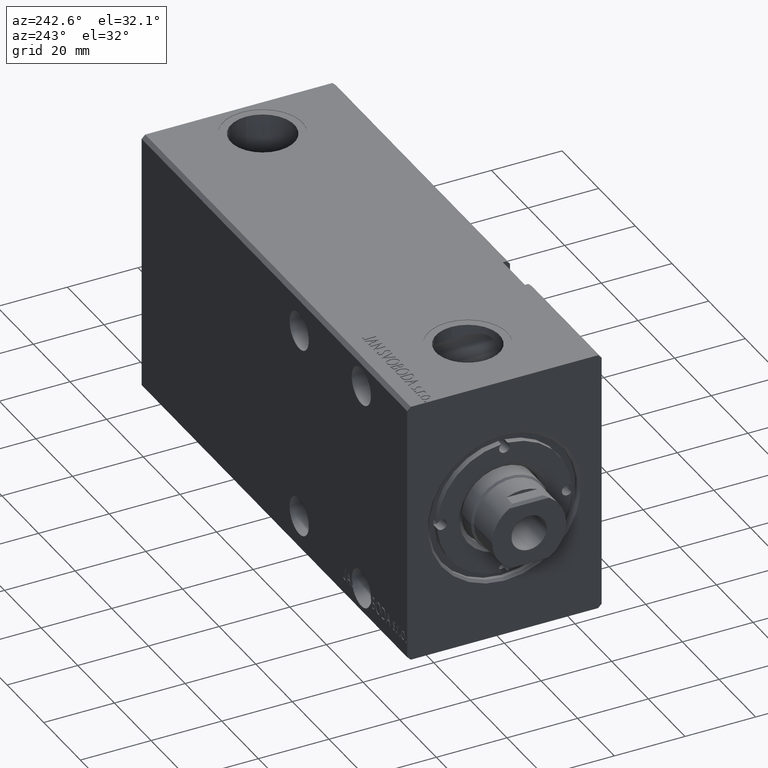
[diagram: clean part render]
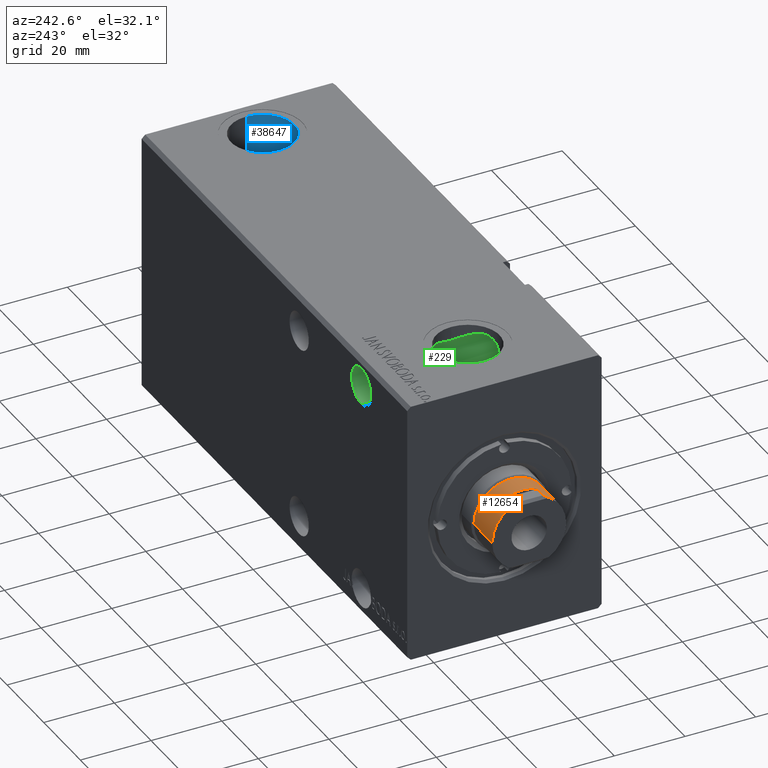
[diagram: same view with three faces highlighted in distinct colors, each labeled with its STEP entity id]
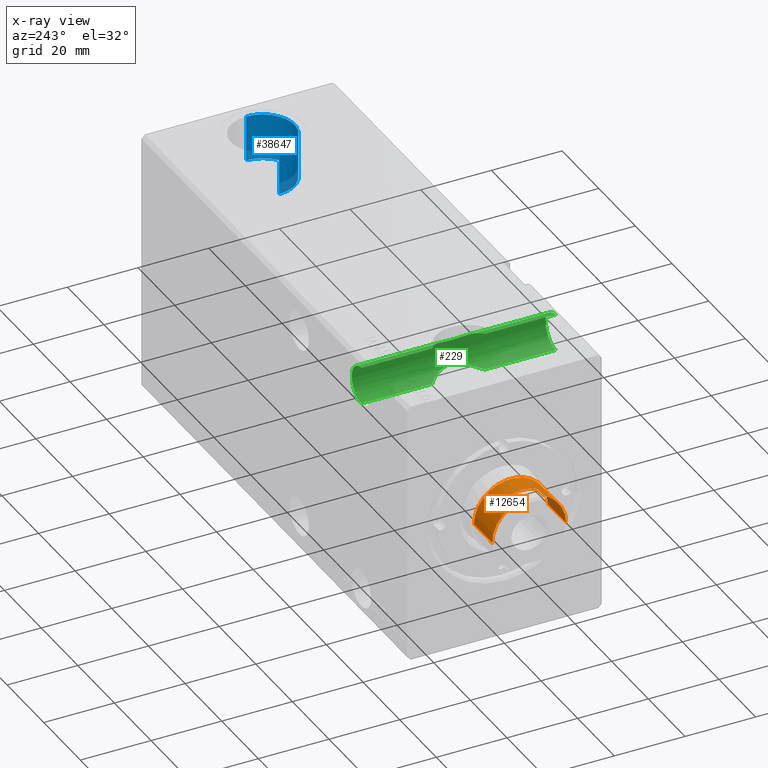
[diagram: x-ray of the same camera — body ghosted, the three highlighted faces saturated]
A machine part, auxiliary view with three faces highlighted in distinct colors.
The next image is the same camera in x-ray (body ghosted, the three faces saturated) — at least one of them is partly hidden behind the body in this view.
Their STEP definitions:

[orange] entity #12654 — the highlighted cylindrical surface (partial cylindrical patch) has radius 10.46 mm, axis along (-1, -0, -0).
#79 = ORIENTED_EDGE ( 'NONE', *, *, #35809, .T. ) ;
#102 = EDGE_CURVE ( 'NONE', #16804, #29643, #17333, .T. ) ;
#1681 = DIRECTION ( 'NONE',  ( -0.000000000000000000, -1.827169771437783368E-16, 1.000000000000000000 ) ) ;
#2246 = ORIENTED_EDGE ( 'NONE', *, *, #4277, .T. ) ;
#2770 = DIRECTION ( 'NONE',  ( -0.000000000000000000, -1.827169771437783368E-16, 1.000000000000000000 ) ) ;
#3604 = CIRCLE ( 'NONE', #20531, 10.46000000000000085 ) ;
#3626 = CARTESIAN_POINT ( 'NONE',  ( 9.500000000000000000, -4.377396486497444172, 124.5000000000000000 ) ) ;
#3935 = CIRCLE ( 'NONE', #20780, 10.46000000000000085 ) ;
#3940 = CARTESIAN_POINT ( 'NONE',  ( 0.000000000000000000, -2.347913156297551696E-14, 128.5000000000000000 ) ) ;
#4277 = EDGE_CURVE ( 'NONE', #36056, #7547, #28980, .T. ) ;
#4292 = CARTESIAN_POINT ( 'NONE',  ( 1.314046015485110656E-15, -10.46000000000002039, 118.5000000000000000 ) ) ;
#4886 = EDGE_CURVE ( 'NONE', #12284, #34118, #7211, .T. ) ;
#5426 = DIRECTION ( 'NONE',  ( 0.000000000000000000, -1.000000000000000000, 0.000000000000000000 ) ) ;
#5998 = VERTEX_POINT ( 'NONE', #26548 ) ;
#6547 = CARTESIAN_POINT ( 'NONE',  ( 9.500000000000000000, 4.377396486497398875, 124.5000000000000000 ) ) ;
#6832 = CARTESIAN_POINT ( 'NONE',  ( 9.500000000000000000, -4.377396486497445061, 127.7900000000000205 ) ) ;
#6873 = CARTESIAN_POINT ( 'NONE',  ( 8.790000000000038227, 5.669876541865709996, 128.5000000000000000 ) ) ;
#7044 = CARTESIAN_POINT ( 'NONE',  ( 0.000000000000000000, 10.45999999999997776, 118.5000000000000000 ) ) ;
#7211 =( BOUNDED_CURVE ( )  B_SPLINE_CURVE ( 3, ( #6873, #19305, #7277, #13394 ),
 .UNSPECIFIED., .F., .F. ) 
 B_SPLINE_CURVE_WITH_KNOTS ( ( 4, 4 ),
 ( 2.568714171481425890, 2.709811500076702462 ),
 .UNSPECIFIED. ) 
 CURVE ( )  GEOMETRIC_REPRESENTATION_ITEM ( )  RATIONAL_B_SPLINE_CURVE ( ( 1.000000000000000000, 0.9983416499762386431, 0.9983416499762386431, 1.000000000000000000 ) ) 
 REPRESENTATION_ITEM ( '' )  );
#7277 = CARTESIAN_POINT ( 'NONE',  ( 9.293949384395547852, 4.824575729748585395, 127.9960506156044886 ) ) ;
#7547 = VERTEX_POINT ( 'NONE', #7044 ) ;
#8273 = VERTEX_POINT ( 'NONE', #14280 ) ;
#8470 = DIRECTION ( 'NONE',  ( 0.000000000000000000, -1.000000000000000000, 0.000000000000000000 ) ) ;
#9353 = FACE_OUTER_BOUND ( 'NONE', #37154, .T. ) ;
#9553 = CARTESIAN_POINT ( 'NONE',  ( 0.000000000000000000, -2.347913156297551696E-14, 128.5000000000000000 ) ) ;
#10256 = ORIENTED_EDGE ( 'NONE', *, *, #24353, .T. ) ;
#11496 = EDGE_CURVE ( 'NONE', #36056, #5998, #21015, .T. ) ;
#11577 = CARTESIAN_POINT ( 'NONE',  ( 1.280980551908131330E-15, 10.45999999999997421, 128.5000000000000000 ) ) ;
#11584 = ORIENTED_EDGE ( 'NONE', *, *, #19697, .T. ) ;
#12284 = VERTEX_POINT ( 'NONE', #19481 ) ;
#12654 = ADVANCED_FACE ( 'NONE', ( #9353 ), #12822, .T. ) ;
#12780 = ORIENTED_EDGE ( 'NONE', *, *, #11496, .F. ) ;
#12822 = CYLINDRICAL_SURFACE ( 'NONE', #14556, 10.45999999999999908 ) ;
#13394 = CARTESIAN_POINT ( 'NONE',  ( 9.500000000000000000, 4.377396486497397987, 127.7900000000000205 ) ) ;
#14107 = CARTESIAN_POINT ( 'NONE',  ( 0.000000000000000000, -2.274826365440040450E-14, 124.5000000000000000 ) ) ;
#14280 = CARTESIAN_POINT ( 'NONE',  ( 1.280980551908131330E-15, 10.45999999999997598, 128.5000000000000000 ) ) ;
#14556 = AXIS2_PLACEMENT_3D ( 'NONE', #9553, #27673, #18926 ) ;
#14904 = DIRECTION ( 'NONE',  ( -1.000000000000000000, 0.000000000000000000, 0.000000000000000000 ) ) ;
#15541 = EDGE_CURVE ( 'NONE', #7547, #8273, #18288, .T. ) ;
#15860 = ORIENTED_EDGE ( 'NONE', *, *, #4886, .T. ) ;
#16400 = CARTESIAN_POINT ( 'NONE',  ( 8.790000000000038227, -5.669876541865757069, 128.5000000000000000 ) ) ;
#16804 = VERTEX_POINT ( 'NONE', #18441 ) ;
#16869 = CARTESIAN_POINT ( 'NONE',  ( 9.500000000000000000, 4.377396486497397987, 128.5000000000000000 ) ) ;
#17156 = DIRECTION ( 'NONE',  ( -0.000000000000000000, -1.827169771437783368E-16, 1.000000000000000000 ) ) ;
#17333 =( BOUNDED_CURVE ( )  B_SPLINE_CURVE ( 3, ( #6832, #25567, #37976, #16400 ),
 .UNSPECIFIED., .F., .T. ) 
 B_SPLINE_CURVE_WITH_KNOTS ( ( 4, 4 ),
 ( 3.573373807102883770, 3.714471135698160342 ),
 .UNSPECIFIED. ) 
 CURVE ( )  GEOMETRIC_REPRESENTATION_ITEM ( )  RATIONAL_B_SPLINE_CURVE ( ( 1.000000000000000000, 0.9983416499762386431, 0.9983416499762386431, 1.000000000000000000 ) ) 
 REPRESENTATION_ITEM ( '' )  );
#17665 = DIRECTION ( 'NONE',  ( 0.000000000000000000, 1.827169771437783368E-16, -1.000000000000000000 ) ) ;
#17676 = ORIENTED_EDGE ( 'NONE', *, *, #15541, .T. ) ;
#17918 = AXIS2_PLACEMENT_3D ( 'NONE', #36346, #18440, #8470 ) ;
#18288 = LINE ( 'NONE', #11577, #23619 ) ;
#18440 = DIRECTION ( 'NONE',  ( -0.000000000000000000, -1.827169771437783368E-16, 1.000000000000000000 ) ) ;
#18441 = CARTESIAN_POINT ( 'NONE',  ( 9.500000000000000000, -4.377396486497445061, 127.7900000000000205 ) ) ;
#18625 = ORIENTED_EDGE ( 'NONE', *, *, #24882, .F. ) ;
#18926 = DIRECTION ( 'NONE',  ( 0.000000000000000000, -1.000000000000000000, 0.000000000000000000 ) ) ;
#19305 = CARTESIAN_POINT ( 'NONE',  ( 9.056889589612579172, 5.256118063110141847, 128.2331104103874679 ) ) ;
#19481 = CARTESIAN_POINT ( 'NONE',  ( 8.790000000000038227, 5.669876541865709996, 128.5000000000000000 ) ) ;
#19697 = EDGE_CURVE ( 'NONE', #35994, #38825, #39183, .T. ) ;
#20231 = LINE ( 'NONE', #32219, #25974 ) ;
#20531 = AXIS2_PLACEMENT_3D ( 'NONE', #3940, #34480, #34074 ) ;
#20780 = AXIS2_PLACEMENT_3D ( 'NONE', #30660, #2770, #5426 ) ;
#21014 = DIRECTION ( 'NONE',  ( -0.000000000000000000, -0.000000000000000000, -1.000000000000000000 ) ) ;
#21015 = LINE ( 'NONE', #32816, #27500 ) ;
#23553 = ORIENTED_EDGE ( 'NONE', *, *, #102, .T. ) ;
#23619 = VECTOR ( 'NONE', #39057, 1000.000000000000000 ) ;
#24353 = EDGE_CURVE ( 'NONE', #34118, #35994, #39043, .T. ) ;
#24398 = VECTOR ( 'NONE', #17665, 1000.000000000000000 ) ;
#24882 = EDGE_CURVE ( 'NONE', #12284, #8273, #3604, .T. ) ;
#25567 = CARTESIAN_POINT ( 'NONE',  ( 9.293949384395547852, -4.824575729748630692, 127.9960506156044886 ) ) ;
#25974 = VECTOR ( 'NONE', #17156, 1000.000000000000000 ) ;
#26548 = CARTESIAN_POINT ( 'NONE',  ( 0.000000000000000000, -10.46000000000002395, 128.5000000000000000 ) ) ;
#27500 = VECTOR ( 'NONE', #1681, 1000.000000000000000 ) ;
#27673 = DIRECTION ( 'NONE',  ( -0.000000000000000000, -1.827169771437783368E-16, 1.000000000000000000 ) ) ;
#28980 = CIRCLE ( 'NONE', #17918, 10.45999999999999908 ) ;
#29643 = VERTEX_POINT ( 'NONE', #35034 ) ;
#30660 = CARTESIAN_POINT ( 'NONE',  ( 0.000000000000000000, -2.347913156297551696E-14, 128.5000000000000000 ) ) ;
#30803 = ORIENTED_EDGE ( 'NONE', *, *, #39105, .F. ) ;
#32219 = CARTESIAN_POINT ( 'NONE',  ( 9.500000000000000000, -4.377396486497445061, 128.5000000000000000 ) ) ;
#32485 = CARTESIAN_POINT ( 'NONE',  ( 9.500000000000000000, 4.377396486497397987, 127.7900000000000205 ) ) ;
#32816 = CARTESIAN_POINT ( 'NONE',  ( 0.000000000000000000, -10.46000000000002395, 128.5000000000000000 ) ) ;
#34074 = DIRECTION ( 'NONE',  ( 0.000000000000000000, -1.000000000000000000, 0.000000000000000000 ) ) ;
#34118 = VERTEX_POINT ( 'NONE', #32485 ) ;
#34480 = DIRECTION ( 'NONE',  ( -0.000000000000000000, -1.827169771437783368E-16, 1.000000000000000000 ) ) ;
#35034 = CARTESIAN_POINT ( 'NONE',  ( 8.790000000000038227, -5.669876541865757069, 128.5000000000000000 ) ) ;
#35809 = EDGE_CURVE ( 'NONE', #38825, #16804, #20231, .T. ) ;
#35994 = VERTEX_POINT ( 'NONE', #6547 ) ;
#36056 = VERTEX_POINT ( 'NONE', #4292 ) ;
#36346 = CARTESIAN_POINT ( 'NONE',  ( 0.000000000000000000, -2.165196179153773265E-14, 118.5000000000000000 ) ) ;
#37154 = EDGE_LOOP ( 'NONE', ( #2246, #17676, #18625, #15860, #10256, #11584, #79, #23553, #30803, #12780 ) ) ;
#37875 = AXIS2_PLACEMENT_3D ( 'NONE', #14107, #21014, #14904 ) ;
#37976 = CARTESIAN_POINT ( 'NONE',  ( 9.056889589612579172, -5.256118063110187144, 128.2331104103874679 ) ) ;
#38825 = VERTEX_POINT ( 'NONE', #3626 ) ;
#39043 = LINE ( 'NONE', #16869, #24398 ) ;
#39057 = DIRECTION ( 'NONE',  ( -0.000000000000000000, -1.827169771437783368E-16, 1.000000000000000000 ) ) ;
#39105 = EDGE_CURVE ( 'NONE', #5998, #29643, #3935, .T. ) ;
#39183 = CIRCLE ( 'NONE', #37875, 10.45999999999999908 ) ;

[blue] entity #38647 — the highlighted cylindrical surface (edge-blend (fillet) strip) has radius 9 mm, axis along (0, 0, 1).
#3407 = CARTESIAN_POINT ( 'NONE',  ( 123.0000000000000000, 7.721156999316769510E-16, 24.40000000000000568 ) ) ;
#3583 = CARTESIAN_POINT ( 'NONE',  ( 141.0000000000000000, -3.300664193009419462E-16, 37.40000000000000568 ) ) ;
#4413 = DIRECTION ( 'NONE',  ( 1.000000000000000000, 0.000000000000000000, 0.000000000000000000 ) ) ;
#4417 = ORIENTED_EDGE ( 'NONE', *, *, #8828, .T. ) ;
#5023 = CARTESIAN_POINT ( 'NONE',  ( 132.0000000000000000, -3.300664193009419462E-16, 24.40000000000000568 ) ) ;
#5664 = EDGE_CURVE ( 'NONE', #6130, #10657, #15362, .T. ) ;
#6130 = VERTEX_POINT ( 'NONE', #24290 ) ;
#7746 = AXIS2_PLACEMENT_3D ( 'NONE', #23409, #7928, #14047 ) ;
#7928 = DIRECTION ( 'NONE',  ( -0.000000000000000000, -0.000000000000000000, 1.000000000000000000 ) ) ;
#8104 = AXIS2_PLACEMENT_3D ( 'NONE', #38050, #13830, #26243 ) ;
#8828 = EDGE_CURVE ( 'NONE', #6130, #37114, #31482, .T. ) ;
#9835 = CARTESIAN_POINT ( 'NONE',  ( 141.0000000000000000, -3.300664193009419462E-16, 24.40000000000000568 ) ) ;
#10657 = VERTEX_POINT ( 'NONE', #39920 ) ;
#11143 = CARTESIAN_POINT ( 'NONE',  ( 123.0000000000000000, 7.721156999316771482E-16, 37.40000000000000568 ) ) ;
#11218 = EDGE_CURVE ( 'NONE', #10657, #35551, #12503, .T. ) ;
#12503 = LINE ( 'NONE', #9835, #29765 ) ;
#12977 = DIRECTION ( 'NONE',  ( -0.000000000000000000, -0.000000000000000000, 1.000000000000000000 ) ) ;
#13830 = DIRECTION ( 'NONE',  ( 0.000000000000000000, 0.000000000000000000, 1.000000000000000000 ) ) ;
#14047 = DIRECTION ( 'NONE',  ( 1.000000000000000000, 0.000000000000000000, 0.000000000000000000 ) ) ;
#15362 = CIRCLE ( 'NONE', #25089, 9.000000000000007105 ) ;
#15489 = EDGE_CURVE ( 'NONE', #37114, #35551, #20461, .T. ) ;
#18177 = ORIENTED_EDGE ( 'NONE', *, *, #11218, .F. ) ;
#20461 = CIRCLE ( 'NONE', #8104, 9.000000000000007105 ) ;
#23241 = VECTOR ( 'NONE', #12977, 1000.000000000000000 ) ;
#23409 = CARTESIAN_POINT ( 'NONE',  ( 132.0000000000000000, -3.300664193009419462E-16, 24.40000000000000568 ) ) ;
#24290 = CARTESIAN_POINT ( 'NONE',  ( 123.0000000000000000, 7.721156999316771482E-16, 24.40000000000000568 ) ) ;
#25089 = AXIS2_PLACEMENT_3D ( 'NONE', #5023, #38214, #4413 ) ;
#25314 = DIRECTION ( 'NONE',  ( -0.000000000000000000, -0.000000000000000000, 1.000000000000000000 ) ) ;
#26243 = DIRECTION ( 'NONE',  ( 1.000000000000000000, 0.000000000000000000, 0.000000000000000000 ) ) ;
#26849 = CYLINDRICAL_SURFACE ( 'NONE', #7746, 9.000000000000007105 ) ;
#28392 = ORIENTED_EDGE ( 'NONE', *, *, #15489, .T. ) ;
#29765 = VECTOR ( 'NONE', #25314, 1000.000000000000000 ) ;
#29908 = FACE_OUTER_BOUND ( 'NONE', #35264, .T. ) ;
#31482 = LINE ( 'NONE', #3407, #23241 ) ;
#32245 = ORIENTED_EDGE ( 'NONE', *, *, #5664, .F. ) ;
#35264 = EDGE_LOOP ( 'NONE', ( #32245, #4417, #28392, #18177 ) ) ;
#35551 = VERTEX_POINT ( 'NONE', #3583 ) ;
#37114 = VERTEX_POINT ( 'NONE', #11143 ) ;
#38050 = CARTESIAN_POINT ( 'NONE',  ( 132.0000000000000000, -3.300664193009419462E-16, 37.40000000000000568 ) ) ;
#38214 = DIRECTION ( 'NONE',  ( 0.000000000000000000, 0.000000000000000000, 1.000000000000000000 ) ) ;
#38647 = ADVANCED_FACE ( 'NONE', ( #29908 ), #26849, .F. ) ;
#39920 = CARTESIAN_POINT ( 'NONE',  ( 141.0000000000000000, -3.300664193009419462E-16, 24.40000000000000568 ) ) ;

[green] entity #229 — the highlighted cylindrical surface (edge-blend (fillet) strip) has radius 5.25 mm, axis along (-0, -1, -0).
#229 = ADVANCED_FACE ( 'NONE', ( #17006 ), #39375, .F. ) ;
#502 = DIRECTION ( 'NONE',  ( -0.000000000000000000, 1.000000000000000000, 5.507058653894625853E-17 ) ) ;
#877 = CARTESIAN_POINT ( 'NONE',  ( 29.00000000000000355, 0.3752926721738933935, 33.50575526560491113 ) ) ;
#1099 = DIRECTION ( 'NONE',  ( 0.000000000000000000, 0.000000000000000000, 1.000000000000000000 ) ) ;
#1254 = EDGE_CURVE ( 'NONE', #36731, #25452, #27774, .T. ) ;
#1470 = CARTESIAN_POINT ( 'NONE',  ( 30.28846153846152944, 62.50000000000002842, 29.25189232688643060 ) ) ;
#1478 = CARTESIAN_POINT ( 'NONE',  ( 25.69352248287891172, 6.980096532906297391, 35.22304154373502882 ) ) ;
#1494 = CARTESIAN_POINT ( 'NONE',  ( 27.80044988867588174, -4.503335614300094214, 34.50180843151989762 ) ) ;
#1697 = DIRECTION ( 'NONE',  ( -0.000000000000000000, -1.000000000000000000, -5.507058653894626469E-17 ) ) ;
#2221 = CARTESIAN_POINT ( 'NONE',  ( 30.28846153846152944, 62.50000000000002842, 30.74810767311353388 ) ) ;
#2333 = CARTESIAN_POINT ( 'NONE',  ( 25.09203633362806229, 7.420994945222085803, 35.24999999999997868 ) ) ;
#2344 = AXIS2_PLACEMENT_3D ( 'NONE', #18793, #2910, #27741 ) ;
#2424 = DIRECTION ( 'NONE',  ( -0.000000000000000000, -1.000000000000000000, -5.507058653894626469E-17 ) ) ;
#2622 = EDGE_CURVE ( 'NONE', #21100, #29215, #25031, .T. ) ;
#2910 = DIRECTION ( 'NONE',  ( -0.000000000000000000, 1.000000000000000000, 5.507058653894625853E-17 ) ) ;
#2937 = CARTESIAN_POINT ( 'NONE',  ( 25.39913943000259167, -7.210271162703460135, 24.74999999999997868 ) ) ;
#3254 = CARTESIAN_POINT ( 'NONE',  ( 30.01923076923075584, -27.30000000000000426, 31.81252723945480909 ) ) ;
#4130 = CARTESIAN_POINT ( 'NONE',  ( 25.39828995337057549, 7.210854044905479654, 35.24999999999998579 ) ) ;
#4336 = CARTESIAN_POINT ( 'NONE',  ( 28.88545983803484418, 1.477775345565450982, 33.62999741624012984 ) ) ;
#4351 = CARTESIAN_POINT ( 'NONE',  ( 25.69255912983133783, -6.980890451850883416, 35.22315996862726450 ) ) ;
#4368 = VERTEX_POINT ( 'NONE', #7020 ) ;
#4537 = CARTESIAN_POINT ( 'NONE',  ( 27.61597516942679320, 4.809012894324030896, 34.60913116232580933 ) ) ;
#4755 = CARTESIAN_POINT ( 'NONE',  ( 25.39985986452861866, -7.209776824840458787, 35.24999999999997868 ) ) ;
#4826 = CARTESIAN_POINT ( 'NONE',  ( 28.13248985305452976, 3.871582426429905688, 25.71546369612806160 ) ) ;
#4865 = B_SPLINE_CURVE_WITH_KNOTS ( 'NONE', 3,
 ( #29380, #4755, #4351, #17171, #35484, #8004, #28978, #13525, #1494, #26532, #25936, #13921, #10457, #7401, #13725, #23286 ),
 .UNSPECIFIED., .F., .F.,
 ( 4, 2, 2, 2, 2, 2, 2, 4 ),
 ( 0.02576235852698001427, 0.02686758018306225140, 0.02797280183914449200, 0.02907802349522672913, 0.03018324515130896973, 0.03239368846347343706, 0.03349891011955567072, 0.03460413177563790438 ),
 .UNSPECIFIED. ) ;
#5027 = EDGE_CURVE ( 'NONE', #14478, #25319, #18480, .T. ) ;
#5468 = VERTEX_POINT ( 'NONE', #13639 ) ;
#5996 = CARTESIAN_POINT ( 'NONE',  ( 29.00000000000000355, -0.7547348622432300536, 26.49424473439504624 ) ) ;
#6009 = VECTOR ( 'NONE', #2424, 1000.000000000000000 ) ;
#6187 = CARTESIAN_POINT ( 'NONE',  ( 26.50772424525515092, -6.227478193131618767, 24.93813414828927222 ) ) ;
#6375 = CIRCLE ( 'NONE', #20046, 5.249999999999997335 ) ;
#6904 = CIRCLE ( 'NONE', #2344, 5.249999999999997335 ) ;
#6952 = B_SPLINE_CURVE_WITH_KNOTS ( 'NONE', 3,
 ( #16354, #877, #10242, #4336, #20025, #19820, #35073, #32019, #4537, #38333, #29363, #16760, #10638, #1478, #4130, #28964 ),
 .UNSPECIFIED., .F., .F.,
 ( 4, 2, 2, 2, 2, 2, 2, 4 ),
 ( 0.03460413177563790438, 0.03570973411017101112, 0.03681533644470411093, 0.03902654111377031054, 0.04013214344830341729, 0.04123774578283651709, 0.04234334811736962384, 0.04344895045190272365 ),
 .UNSPECIFIED. ) ;
#7020 = CARTESIAN_POINT ( 'NONE',  ( 25.09203633362805519, 27.50000000000001066, 24.74999999999997868 ) ) ;
#7401 = CARTESIAN_POINT ( 'NONE',  ( 28.97665713912697072, -0.7447784191796217312, 33.53222785005503681 ) ) ;
#7625 = CARTESIAN_POINT ( 'NONE',  ( 25.09203633362805519, -27.50000000000000355, 29.99999999999997868 ) ) ;
#7673 = CARTESIAN_POINT ( 'NONE',  ( 26.98708261470107672, 5.684326911343642763, 25.09745503042153558 ) ) ;
#7750 = ORIENTED_EDGE ( 'NONE', *, *, #1254, .F. ) ;
#7877 = CARTESIAN_POINT ( 'NONE',  ( 28.64300191448425181, 2.535850762051376606, 26.13113724437028296 ) ) ;
#8004 = CARTESIAN_POINT ( 'NONE',  ( 26.98775188104276523, -5.683516051408362024, 34.90229200153667932 ) ) ;
#8072 = CARTESIAN_POINT ( 'NONE',  ( 30.28846153846152944, -27.50000000000000355, 30.74810767311353032 ) ) ;
#8379 = CARTESIAN_POINT ( 'NONE',  ( 25.09203633362805519, -27.30000000000000426, 29.99999999999997868 ) ) ;
#8442 = VECTOR ( 'NONE', #23559, 1000.000000000000000 ) ;
#8444 = CARTESIAN_POINT ( 'NONE',  ( 28.64344796629017154, -2.534200944029155966, 26.13155745703043920 ) ) ;
#8639 = CARTESIAN_POINT ( 'NONE',  ( 26.98845012761672635, -5.682739155726322267, 25.09793177466777436 ) ) ;
#8775 = VERTEX_POINT ( 'NONE', #28425 ) ;
#9369 = VERTEX_POINT ( 'NONE', #35043 ) ;
#9749 = EDGE_CURVE ( 'NONE', #24063, #33259, #17435, .T. ) ;
#10191 = VECTOR ( 'NONE', #13703, 1000.000000000000000 ) ;
#10242 = CARTESIAN_POINT ( 'NONE',  ( 28.97639889706040250, 0.7479835199682542957, 33.53251618559648506 ) ) ;
#10434 = LINE ( 'NONE', #1470, #10191 ) ;
#10457 = CARTESIAN_POINT ( 'NONE',  ( 28.88604462900767089, -1.474204578204435734, 33.62938196416556025 ) ) ;
#10528 = EDGE_CURVE ( 'NONE', #15682, #25452, #6375, .T. ) ;
#10638 = CARTESIAN_POINT ( 'NONE',  ( 26.24929060386796209, 6.487242312427180302, 35.12861688073245148 ) ) ;
#10726 = CARTESIAN_POINT ( 'NONE',  ( 26.50826010511298136, 6.226832766654192497, 24.93833448208705761 ) ) ;
#10934 = CARTESIAN_POINT ( 'NONE',  ( 27.20811824714590443, 5.401112278612569817, 25.18998215254051587 ) ) ;
#11008 = CIRCLE ( 'NONE', #25969, 5.249999999999997335 ) ;
#11087 = EDGE_CURVE ( 'NONE', #9369, #28857, #17655, .T. ) ;
#11225 = B_SPLINE_CURVE_WITH_KNOTS ( 'NONE', 3,
 ( #36721, #5996, #34068, #8444, #20872, #30626, #17811, #24526, #24311, #27166, #8639, #6187, #18415, #23922, #2937, #36322 ),
 .UNSPECIFIED., .F., .F.,
 ( 4, 2, 2, 2, 2, 2, 2, 4 ),
 ( 1.438171675672391429E-18, 0.002215372555607655978, 0.003323058833411481582, 0.004430745111215307619, 0.005538431389019131922, 0.006646117666822956224, 0.007753803944626780527, 0.008861490222430604830 ),
 .UNSPECIFIED. ) ;
#11322 = EDGE_CURVE ( 'NONE', #8775, #33259, #6952, .T. ) ;
#11934 = CARTESIAN_POINT ( 'NONE',  ( 25.09203633362805519, 62.50000000000002842, 24.74999999999998224 ) ) ;
#13046 = ORIENTED_EDGE ( 'NONE', *, *, #31205, .F. ) ;
#13525 = CARTESIAN_POINT ( 'NONE',  ( 27.61425571795738776, -4.811558733873751770, 34.60999959154606387 ) ) ;
#13598 = CARTESIAN_POINT ( 'NONE',  ( 25.69334361712194692, 6.980293622299830858, 24.77689924301810365 ) ) ;
#13639 = CARTESIAN_POINT ( 'NONE',  ( 25.09203633362804808, -7.420994945222091133, 24.74999999999997868 ) ) ;
#13703 = DIRECTION ( 'NONE',  ( 0.000000000000000000, 1.000000000000000000, 5.507058653894626469E-17 ) ) ;
#13725 = CARTESIAN_POINT ( 'NONE',  ( 29.00000000000000000, -0.3751634522648794046, 33.50575526560491113 ) ) ;
#13921 = CARTESIAN_POINT ( 'NONE',  ( 28.81830316114043811, -1.835833140632391336, 33.70034376692515821 ) ) ;
#13999 = LINE ( 'NONE', #14597, #8442 ) ;
#14197 = CARTESIAN_POINT ( 'NONE',  ( 27.80154670682738072, 4.501378752767488223, 25.49887097713087414 ) ) ;
#14384 = CARTESIAN_POINT ( 'NONE',  ( 25.09203633362805519, 62.50000000000002842, 35.24999999999998579 ) ) ;
#14478 = VERTEX_POINT ( 'NONE', #35272 ) ;
#14597 = CARTESIAN_POINT ( 'NONE',  ( 25.09203633362805519, 62.50000000000002842, 24.74999999999998224 ) ) ;
#14698 = DIRECTION ( 'NONE',  ( 0.000000000000000000, 0.000000000000000000, 1.000000000000000000 ) ) ;
#14755 = DIRECTION ( 'NONE',  ( -0.000000000000000000, -1.000000000000000000, -5.507058653894626469E-17 ) ) ;
#15067 = CARTESIAN_POINT ( 'NONE',  ( 29.00000000000000000, 3.587151987064342847E-15, 26.49424473439504268 ) ) ;
#15682 = VERTEX_POINT ( 'NONE', #34748 ) ;
#16332 = VERTEX_POINT ( 'NONE', #39663 ) ;
#16354 = CARTESIAN_POINT ( 'NONE',  ( 29.00000000000000000, 2.448765741311619827E-15, 33.50575526560491113 ) ) ;
#16737 = VERTEX_POINT ( 'NONE', #34698 ) ;
#16760 = CARTESIAN_POINT ( 'NONE',  ( 26.50687051437111563, 6.228290665738291487, 35.06205956538869373 ) ) ;
#16808 = ORIENTED_EDGE ( 'NONE', *, *, #10528, .T. ) ;
#17006 = FACE_OUTER_BOUND ( 'NONE', #23745, .T. ) ;
#17171 = CARTESIAN_POINT ( 'NONE',  ( 26.24861887141146610, -6.487898207216983515, 35.12877612300681562 ) ) ;
#17247 = CARTESIAN_POINT ( 'NONE',  ( 28.90744086844683736, 1.478371367357671717, 26.38544462637787547 ) ) ;
#17435 = LINE ( 'NONE', #14384, #20023 ) ;
#17655 = LINE ( 'NONE', #29466, #25884 ) ;
#17811 = CARTESIAN_POINT ( 'NONE',  ( 28.13259195614233477, -3.871220427964119803, 25.71557989135420286 ) ) ;
#17845 = DIRECTION ( 'NONE',  ( -0.000000000000000000, -1.000000000000000000, -5.507058653894626469E-17 ) ) ;
#18222 = CARTESIAN_POINT ( 'NONE',  ( 30.01923076923075584, 62.50000000000002842, 31.81252723945480909 ) ) ;
#18251 = LINE ( 'NONE', #11934, #24657 ) ;
#18365 = CARTESIAN_POINT ( 'NONE',  ( 30.01923076923075584, -27.50000000000000355, 31.81252723945480909 ) ) ;
#18415 = CARTESIAN_POINT ( 'NONE',  ( 26.25006452619709663, -6.486402697785905502, 24.87162943997403985 ) ) ;
#18480 = B_SPLINE_CURVE_WITH_KNOTS ( 'NONE', 3,
 ( #32303, #38815, #13598, #32907, #10726, #7673, #10934, #32708, #14197, #4826, #23355, #35759, #7877, #17247, #29654, #35961 ),
 .UNSPECIFIED., .F., .F.,
 ( 4, 2, 2, 2, 2, 2, 2, 4 ),
 ( 0.06033460887128355710, 0.06143913948644485340, 0.06254367010160614970, 0.06364820071676745294, 0.06475273133192874231, 0.06585726194709004555, 0.06696179256225134879, 0.06917085379257394140 ),
 .UNSPECIFIED. ) ;
#18707 = DIRECTION ( 'NONE',  ( -0.000000000000000000, 1.000000000000000000, 4.752667057470704875E-17 ) ) ;
#18793 = CARTESIAN_POINT ( 'NONE',  ( 25.09203633362805519, -27.50000000000000355, 29.99999999999997868 ) ) ;
#18992 = EDGE_CURVE ( 'NONE', #15682, #21100, #36415, .T. ) ;
#19357 = ORIENTED_EDGE ( 'NONE', *, *, #2622, .F. ) ;
#19820 = CARTESIAN_POINT ( 'NONE',  ( 28.55143353920023586, 2.899375832483972015, 33.95674865998868341 ) ) ;
#20023 = VECTOR ( 'NONE', #30642, 1000.000000000000000 ) ;
#20025 = CARTESIAN_POINT ( 'NONE',  ( 28.81813026369257358, 1.836825413828688580, 33.70052986346509982 ) ) ;
#20046 = AXIS2_PLACEMENT_3D ( 'NONE', #8379, #38922, #38715 ) ;
#20064 = DIRECTION ( 'NONE',  ( -0.000000000000000000, 1.000000000000000000, 5.507058653894625853E-17 ) ) ;
#20110 = AXIS2_PLACEMENT_3D ( 'NONE', #29566, #35870, #39130 ) ;
#20846 = VERTEX_POINT ( 'NONE', #37404 ) ;
#20872 = CARTESIAN_POINT ( 'NONE',  ( 28.53375569791796806, -2.881418590528710855, 26.03211274050205404 ) ) ;
#20966 = CARTESIAN_POINT ( 'NONE',  ( 30.24591836565013026, -27.50000000000000355, 28.99999999999998934 ) ) ;
#21100 = VERTEX_POINT ( 'NONE', #8072 ) ;
#21362 = DIRECTION ( 'NONE',  ( 0.000000000000000000, 0.000000000000000000, -1.000000000000000000 ) ) ;
#21813 = ORIENTED_EDGE ( 'NONE', *, *, #39078, .T. ) ;
#22498 = ORIENTED_EDGE ( 'NONE', *, *, #35844, .T. ) ;
#23246 = VECTOR ( 'NONE', #1697, 1000.000000000000000 ) ;
#23286 = CARTESIAN_POINT ( 'NONE',  ( 29.00000000000000000, 2.448765741311619827E-15, 33.50575526560491113 ) ) ;
#23355 = CARTESIAN_POINT ( 'NONE',  ( 28.27869767015492286, 3.548313514257610102, 25.82451090514978631 ) ) ;
#23559 = DIRECTION ( 'NONE',  ( -0.000000000000000000, -1.000000000000000000, -5.507058653894626469E-17 ) ) ;
#23745 = EDGE_LOOP ( 'NONE', ( #31274, #30851, #21813, #32314, #34901, #24269, #26807, #35998, #22498, #38355, #19357, #37644, #16808, #7750, #27895, #13046, #28210, #30043 ) ) ;
#23922 = CARTESIAN_POINT ( 'NONE',  ( 25.69690979035508249, -6.977244827295947083, 24.77741998653225153 ) ) ;
#24063 = VERTEX_POINT ( 'NONE', #34065 ) ;
#24269 = ORIENTED_EDGE ( 'NONE', *, *, #37123, .T. ) ;
#24311 = CARTESIAN_POINT ( 'NONE',  ( 27.61997872250114483, -4.802613197577657367, 25.39309515419770236 ) ) ;
#24526 = CARTESIAN_POINT ( 'NONE',  ( 27.80328347173058035, -4.498240387842135313, 25.49995854273512919 ) ) ;
#24657 = VECTOR ( 'NONE', #17845, 1000.000000000000000 ) ;
#25031 = CIRCLE ( 'NONE', #32205, 5.249999999999997335 ) ;
#25319 = VERTEX_POINT ( 'NONE', #15067 ) ;
#25452 = VERTEX_POINT ( 'NONE', #3254 ) ;
#25606 = VERTEX_POINT ( 'NONE', #37845 ) ;
#25650 = VECTOR ( 'NONE', #34274, 1000.000000000000000 ) ;
#25739 = CARTESIAN_POINT ( 'NONE',  ( 25.09203633362805519, -27.50000000000000355, 29.99999999999997868 ) ) ;
#25799 = EDGE_CURVE ( 'NONE', #16737, #8775, #4865, .T. ) ;
#25884 = VECTOR ( 'NONE', #29669, 1000.000000000000000 ) ;
#25936 = CARTESIAN_POINT ( 'NONE',  ( 28.55241649419669869, -2.896064218536318791, 33.95584415735848438 ) ) ;
#25969 = AXIS2_PLACEMENT_3D ( 'NONE', #7625, #20064, #14698 ) ;
#26435 = EDGE_CURVE ( 'NONE', #20846, #36731, #6904, .T. ) ;
#26532 = CARTESIAN_POINT ( 'NONE',  ( 28.29802163043525454, -3.556829698467049994, 34.17627715001510325 ) ) ;
#26807 = ORIENTED_EDGE ( 'NONE', *, *, #39317, .F. ) ;
#27166 = CARTESIAN_POINT ( 'NONE',  ( 27.21275518690654849, -5.394935761496154392, 25.19202573581271309 ) ) ;
#27741 = DIRECTION ( 'NONE',  ( 0.000000000000000000, 0.000000000000000000, 1.000000000000000000 ) ) ;
#27774 = LINE ( 'NONE', #18222, #25650 ) ;
#27895 = ORIENTED_EDGE ( 'NONE', *, *, #26435, .F. ) ;
#28210 = ORIENTED_EDGE ( 'NONE', *, *, #25799, .T. ) ;
#28425 = CARTESIAN_POINT ( 'NONE',  ( 29.00000000000000000, 2.448765741311619827E-15, 33.50575526560491113 ) ) ;
#28435 = EDGE_CURVE ( 'NONE', #29215, #25606, #10434, .T. ) ;
#28857 = VERTEX_POINT ( 'NONE', #20966 ) ;
#28964 = CARTESIAN_POINT ( 'NONE',  ( 25.09203633362806229, 7.420994945222085803, 35.24999999999997868 ) ) ;
#28978 = CARTESIAN_POINT ( 'NONE',  ( 27.20831197909022947, -5.400761612964192437, 34.80989233238801717 ) ) ;
#29215 = VERTEX_POINT ( 'NONE', #37784 ) ;
#29363 = CARTESIAN_POINT ( 'NONE',  ( 26.98594109632271554, 5.685736144636363676, 34.90299169409703239 ) ) ;
#29380 = CARTESIAN_POINT ( 'NONE',  ( 25.09203633362804808, -7.420994945222091133, 35.24999999999997868 ) ) ;
#29414 = CARTESIAN_POINT ( 'NONE',  ( 25.09203633362805519, 62.50000000000002842, 29.99999999999998224 ) ) ;
#29466 = CARTESIAN_POINT ( 'NONE',  ( 30.24591836565012670, 62.50000000000002842, 28.99999999999998934 ) ) ;
#29566 = CARTESIAN_POINT ( 'NONE',  ( 25.09203633362805519, -27.30000000000000426, 29.99999999999997868 ) ) ;
#29581 = LINE ( 'NONE', #32638, #23246 ) ;
#29654 = CARTESIAN_POINT ( 'NONE',  ( 29.00000000000000355, 0.7525847149880788844, 26.49424473439504268 ) ) ;
#29669 = DIRECTION ( 'NONE',  ( -0.000000000000000000, -1.000000000000000000, -5.507058653894626469E-17 ) ) ;
#30043 = ORIENTED_EDGE ( 'NONE', *, *, #11322, .T. ) ;
#30626 = CARTESIAN_POINT ( 'NONE',  ( 28.27858796160337107, -3.548597013974325698, 25.82442217066163437 ) ) ;
#30642 = DIRECTION ( 'NONE',  ( -0.000000000000000000, -1.000000000000000000, -5.507058653894626469E-17 ) ) ;
#30851 = ORIENTED_EDGE ( 'NONE', *, *, #31908, .T. ) ;
#31205 = EDGE_CURVE ( 'NONE', #16737, #20846, #29581, .T. ) ;
#31274 = ORIENTED_EDGE ( 'NONE', *, *, #9749, .F. ) ;
#31908 = EDGE_CURVE ( 'NONE', #24063, #4368, #32355, .T. ) ;
#32019 = CARTESIAN_POINT ( 'NONE',  ( 27.80104324340688038, 4.502166982739526979, 34.50140846751485668 ) ) ;
#32205 = AXIS2_PLACEMENT_3D ( 'NONE', #25739, #502, #1099 ) ;
#32303 = CARTESIAN_POINT ( 'NONE',  ( 25.09203633362806229, 7.420994945222086692, 24.74999999999997868 ) ) ;
#32314 = ORIENTED_EDGE ( 'NONE', *, *, #5027, .T. ) ;
#32355 = CIRCLE ( 'NONE', #33654, 5.249999999999997335 ) ;
#32638 = CARTESIAN_POINT ( 'NONE',  ( 25.09203633362805519, 62.50000000000002842, 35.24999999999998579 ) ) ;
#32708 = CARTESIAN_POINT ( 'NONE',  ( 27.61557174186452457, 4.809578937446775448, 25.39067863986758411 ) ) ;
#32907 = CARTESIAN_POINT ( 'NONE',  ( 26.25051141639492158, 6.486121154408040823, 24.87161941258490572 ) ) ;
#33259 = VERTEX_POINT ( 'NONE', #2333 ) ;
#33307 = EDGE_CURVE ( 'NONE', #25319, #5468, #11225, .T. ) ;
#33654 = AXIS2_PLACEMENT_3D ( 'NONE', #36808, #18707, #21362 ) ;
#34065 = CARTESIAN_POINT ( 'NONE',  ( 25.09203633362805519, 27.50000000000001066, 35.24999999999997868 ) ) ;
#34068 = CARTESIAN_POINT ( 'NONE',  ( 28.90713645207089399, -1.479320420641204281, 26.38516940124223709 ) ) ;
#34274 = DIRECTION ( 'NONE',  ( 0.000000000000000000, 1.000000000000000000, 5.507058653894626469E-17 ) ) ;
#34698 = CARTESIAN_POINT ( 'NONE',  ( 25.09203633362804808, -7.420994945222091133, 35.24999999999997868 ) ) ;
#34748 = CARTESIAN_POINT ( 'NONE',  ( 30.28846153846152944, -27.30000000000000426, 30.74810767311353388 ) ) ;
#34901 = ORIENTED_EDGE ( 'NONE', *, *, #33307, .T. ) ;
#35043 = CARTESIAN_POINT ( 'NONE',  ( 30.24591836565013026, -27.30000000000000426, 28.99999999999998934 ) ) ;
#35073 = CARTESIAN_POINT ( 'NONE',  ( 28.29617726831390101, 3.560417901961528742, 34.17750731719846158 ) ) ;
#35272 = CARTESIAN_POINT ( 'NONE',  ( 25.09203633362806229, 7.420994945222086692, 24.74999999999997868 ) ) ;
#35484 = CARTESIAN_POINT ( 'NONE',  ( 26.50873434257051642, -6.226347911535001778, 35.06153840808293154 ) ) ;
#35720 = DIRECTION ( 'NONE',  ( 0.000000000000000000, 0.000000000000000000, -1.000000000000000000 ) ) ;
#35759 = CARTESIAN_POINT ( 'NONE',  ( 28.53366756112175295, 2.881645687025073954, 26.03204156412034820 ) ) ;
#35844 = EDGE_CURVE ( 'NONE', #9369, #25606, #38955, .T. ) ;
#35870 = DIRECTION ( 'NONE',  ( -0.000000000000000000, -1.000000000000000000, -0.000000000000000000 ) ) ;
#35961 = CARTESIAN_POINT ( 'NONE',  ( 29.00000000000000000, 3.587151987064342847E-15, 26.49424473439504268 ) ) ;
#35998 = ORIENTED_EDGE ( 'NONE', *, *, #11087, .F. ) ;
#36322 = CARTESIAN_POINT ( 'NONE',  ( 25.09203633362804808, -7.420994945222091133, 24.74999999999997868 ) ) ;
#36415 = LINE ( 'NONE', #2221, #6009 ) ;
#36721 = CARTESIAN_POINT ( 'NONE',  ( 29.00000000000000000, 3.587151987064342847E-15, 26.49424473439504268 ) ) ;
#36731 = VERTEX_POINT ( 'NONE', #18365 ) ;
#36808 = CARTESIAN_POINT ( 'NONE',  ( 25.09203633362805519, 27.50000000000001066, 29.99999999999997868 ) ) ;
#37123 = EDGE_CURVE ( 'NONE', #5468, #16332, #13999, .T. ) ;
#37404 = CARTESIAN_POINT ( 'NONE',  ( 25.09203633362805519, -27.50000000000000355, 35.24999999999997868 ) ) ;
#37644 = ORIENTED_EDGE ( 'NONE', *, *, #18992, .F. ) ;
#37784 = CARTESIAN_POINT ( 'NONE',  ( 30.28846153846152944, -27.50000000000000355, 29.25189232688642704 ) ) ;
#37845 = CARTESIAN_POINT ( 'NONE',  ( 30.28846153846152944, -27.30000000000000426, 29.25189232688642349 ) ) ;
#38333 = CARTESIAN_POINT ( 'NONE',  ( 27.20739871101655893, 5.402137227018311449, 34.81036374203709016 ) ) ;
#38355 = ORIENTED_EDGE ( 'NONE', *, *, #28435, .F. ) ;
#38715 = DIRECTION ( 'NONE',  ( -1.057355261547768637E-14, 0.000000000000000000, 1.000000000000000000 ) ) ;
#38815 = CARTESIAN_POINT ( 'NONE',  ( 25.39935733355073566, 7.210121644641183103, 24.74999999999998224 ) ) ;
#38922 = DIRECTION ( 'NONE',  ( -0.000000000000000000, -1.000000000000000000, -0.000000000000000000 ) ) ;
#38955 = CIRCLE ( 'NONE', #20110, 5.249999999999997335 ) ;
#39078 = EDGE_CURVE ( 'NONE', #4368, #14478, #18251, .T. ) ;
#39130 = DIRECTION ( 'NONE',  ( -4.097251638497603291E-14, 0.000000000000000000, 1.000000000000000000 ) ) ;
#39317 = EDGE_CURVE ( 'NONE', #28857, #16332, #11008, .T. ) ;
#39375 = CYLINDRICAL_SURFACE ( 'NONE', #39937, 5.249999999999997335 ) ;
#39663 = CARTESIAN_POINT ( 'NONE',  ( 25.09203633362805519, -27.50000000000000355, 24.74999999999997868 ) ) ;
#39937 = AXIS2_PLACEMENT_3D ( 'NONE', #29414, #14755, #35720 ) ;